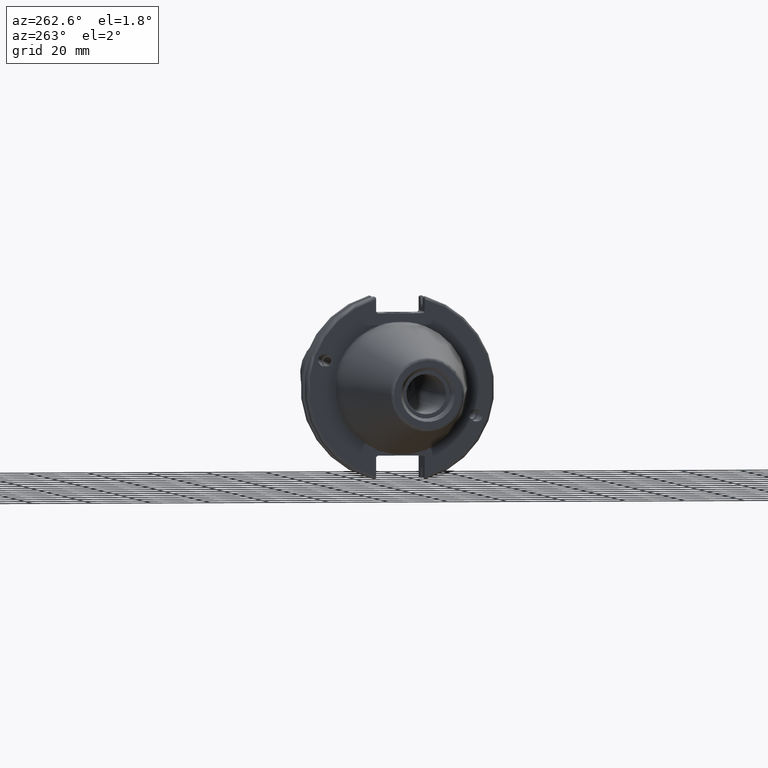
[diagram: clean part render]
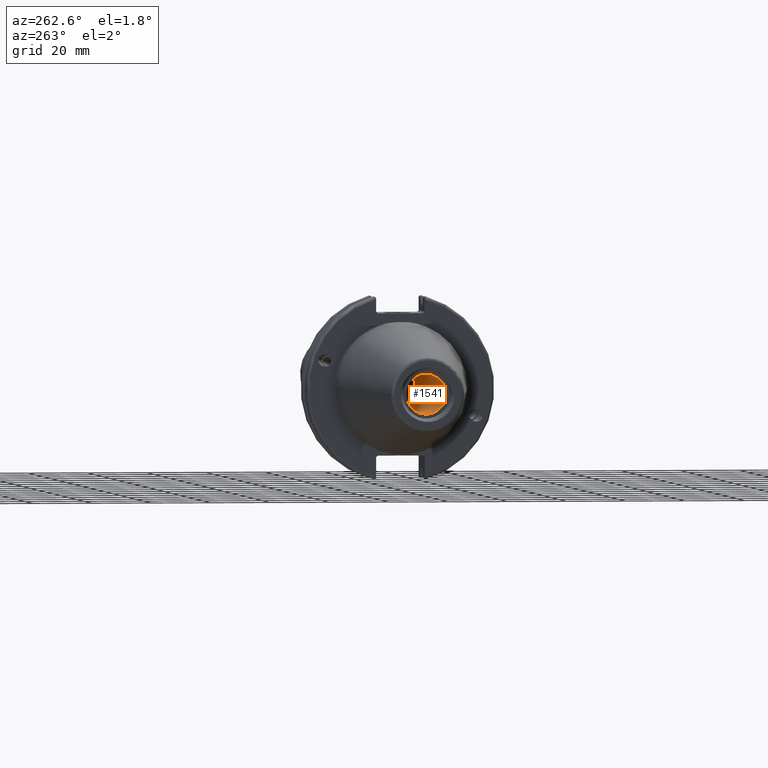
[diagram: same view with one face highlighted and labeled with its STEP entity id]
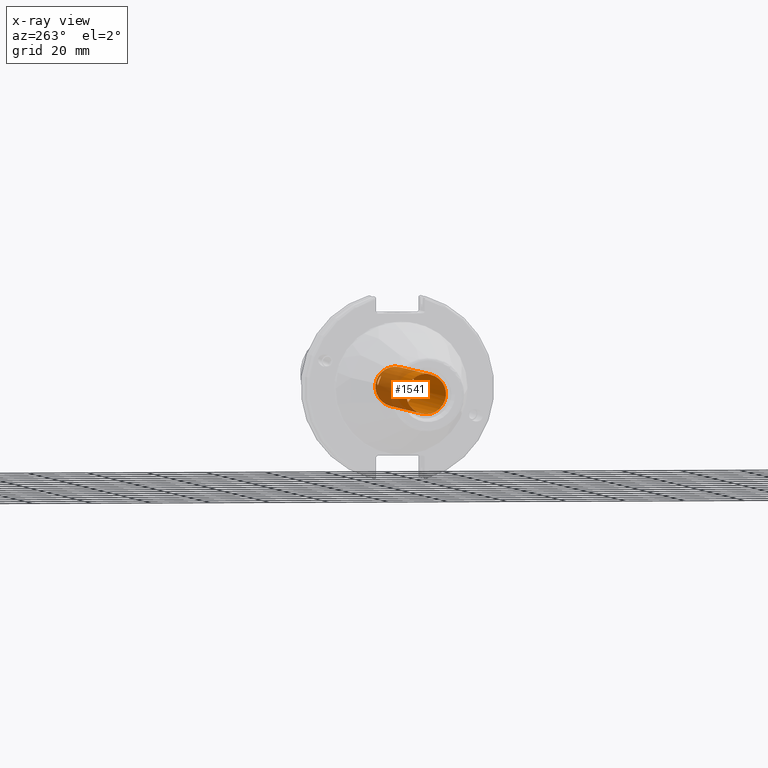
[diagram: x-ray of the same camera — body ghosted, the highlighted face saturated]
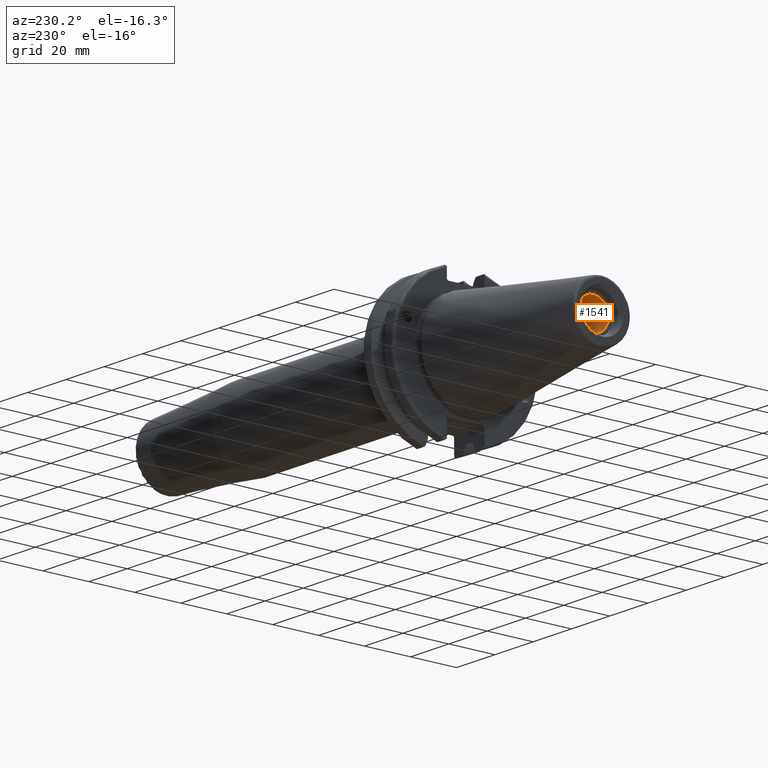
[diagram: same view with one face highlighted and labeled with its STEP entity id]
A machine part, auxiliary view. The second image highlights one B-rep face of the part: STEP entity #1541.
The next image is the same camera in x-ray: the body ghosted, the highlighted face saturated — about 37% of this face is hidden behind the body in this view.
A second angle (auxiliary view) of the same face is appended — the face is thin or edge-on in the first view.
In plain terms, the highlighted cylindrical surface (bore or boss wall) has radius 6.6929 mm, axis along (-1, 0, 0).
Its self-contained STEP definition (entity closure, byte-faithful):
#31=B_SPLINE_CURVE_WITH_KNOTS('',3,(#2393,#2394,#2395,#2396,#2397,#2398,
#2399,#2400,#2401,#2402,#2403,#2404,#2405,#2406,#2407,#2408,#2409,#2410,
#2411,#2412,#2413,#2414,#2415,#2416,#2417,#2418),.UNSPECIFIED.,.F.,.F.,
(4,2,2,2,2,2,2,2,2,2,2,2,4),(0.,0.0613281361392534,0.122656272278507,0.183976883359658,
0.245297494440809,0.30661810552196,0.36793871660311,0.429266852742364,0.490594988881617,
0.55192312502087,0.613251261160123,0.674571872241274,0.735892483322425),
 .UNSPECIFIED.);
#32=B_SPLINE_CURVE_WITH_KNOTS('',3,(#2419,#2420,#2421,#2422,#2423,#2424,
#2425,#2426,#2427,#2428),.UNSPECIFIED.,.F.,.F.,(4,2,2,2,4),(0.735892483322425,
0.797213094403575,0.858533705484726,0.919861841623979,0.981189977763232),
 .UNSPECIFIED.);
#33=B_SPLINE_CURVE_WITH_KNOTS('',3,(#2431,#2432,#2433,#2434,#2435,#2436,
#2437,#2438,#2439,#2440,#2441,#2442,#2443,#2444,#2445,#2446,#2447,#2448,
#2449,#2450,#2451,#2452,#2453,#2454,#2455,#2456),.UNSPECIFIED.,.F.,.F.,
(4,2,2,2,2,2,2,2,2,2,2,2,4),(0.,0.0613281361392537,0.122656272278507,0.183976883359658,
0.245297494440808,0.306618105521959,0.36793871660311,0.429266852742363,
0.490594988881617,0.55192312502087,0.613251261160123,0.674571872241274,
0.735892483322425),.UNSPECIFIED.);
#34=B_SPLINE_CURVE_WITH_KNOTS('',3,(#2457,#2458,#2459,#2460,#2461,#2462,
#2463,#2464,#2465,#2466),.UNSPECIFIED.,.F.,.F.,(4,2,2,2,4),(0.735892483322425,
0.797213094403576,0.858533705484727,0.91986184162398,0.981189977763233),
 .UNSPECIFIED.);
#65=FACE_BOUND('',#284,.T.);
#66=FACE_BOUND('',#285,.T.);
#150=CYLINDRICAL_SURFACE('',#1678,6.6929);
#189=FACE_OUTER_BOUND('',#283,.T.);
#283=EDGE_LOOP('',(#1108,#1109,#1110,#1111));
#284=EDGE_LOOP('',(#1112,#1113));
#285=EDGE_LOOP('',(#1114,#1115));
#392=LINE('',#2390,#488);
#488=VECTOR('',#1927,6.6929);
#586=CIRCLE('',#1677,6.6929);
#587=CIRCLE('',#1679,6.6929);
#673=VERTEX_POINT('',#2384);
#674=VERTEX_POINT('',#2388);
#675=VERTEX_POINT('',#2391);
#676=VERTEX_POINT('',#2392);
#677=VERTEX_POINT('',#2429);
#678=VERTEX_POINT('',#2430);
#840=EDGE_CURVE('',#673,#673,#586,.T.);
#842=EDGE_CURVE('',#674,#674,#587,.T.);
#843=EDGE_CURVE('',#674,#673,#392,.T.);
#844=EDGE_CURVE('',#675,#676,#31,.T.);
#845=EDGE_CURVE('',#676,#675,#32,.T.);
#846=EDGE_CURVE('',#677,#678,#33,.T.);
#847=EDGE_CURVE('',#678,#677,#34,.T.);
#1108=ORIENTED_EDGE('',*,*,#842,.F.);
#1109=ORIENTED_EDGE('',*,*,#843,.T.);
#1110=ORIENTED_EDGE('',*,*,#840,.F.);
#1111=ORIENTED_EDGE('',*,*,#843,.F.);
#1112=ORIENTED_EDGE('',*,*,#844,.F.);
#1113=ORIENTED_EDGE('',*,*,#845,.F.);
#1114=ORIENTED_EDGE('',*,*,#846,.F.);
#1115=ORIENTED_EDGE('',*,*,#847,.F.);
#1541=ADVANCED_FACE('',(#189,#65,#66),#150,.F.);
#1677=AXIS2_PLACEMENT_3D('',#2385,#1920,#1921);
#1678=AXIS2_PLACEMENT_3D('',#2387,#1923,#1924);
#1679=AXIS2_PLACEMENT_3D('',#2389,#1925,#1926);
#1920=DIRECTION('center_axis',(-1.,0.,0.));
#1921=DIRECTION('ref_axis',(0.,0.,1.));
#1923=DIRECTION('center_axis',(-1.,0.,0.));
#1924=DIRECTION('ref_axis',(0.,0.,1.));
#1925=DIRECTION('center_axis',(1.,0.,0.));
#1926=DIRECTION('ref_axis',(0.,0.,1.));
#1927=DIRECTION('',(1.,0.,0.));
#2384=CARTESIAN_POINT('',(16.75,-8.19643856201333E-16,-6.6929));
#2385=CARTESIAN_POINT('Origin',(16.75,0.,0.));
#2387=CARTESIAN_POINT('Origin',(-25.75,0.,0.));
#2388=CARTESIAN_POINT('',(-63.45,8.19643856201332E-16,-6.6929));
#2389=CARTESIAN_POINT('Origin',(-63.45,0.,0.));
#2390=CARTESIAN_POINT('',(-25.75,-8.19643856201332E-16,-6.6929));
#2391=CARTESIAN_POINT('',(11.1341,-6.65643365521149,-0.697711547681303));
#2392=CARTESIAN_POINT('',(9.5131,-6.28926874165801,-2.28910661726437));
#2393=CARTESIAN_POINT('Ctrl Pts',(11.1341,-6.65643365521149,-0.697711547681303));
#2394=CARTESIAN_POINT('Ctrl Pts',(11.3385271204642,-6.65643365521149,-0.697711547681302));
#2395=CARTESIAN_POINT('Ctrl Pts',(11.5559966151745,-6.65241872830876,-0.739904750929787));
#2396=CARTESIAN_POINT('Ctrl Pts',(11.9551199575703,-6.63148496397673,-0.908592848123723));
#2397=CARTESIAN_POINT('Ctrl Pts',(12.1368480110646,-6.6140166083086,-1.03484342994688));
#2398=CARTESIAN_POINT('Ctrl Pts',(12.4237745692937,-6.5627497245329,-1.32152467584939));
#2399=CARTESIAN_POINT('Ctrl Pts',(12.5483995766669,-6.52541782463156,-1.501335759233));
#2400=CARTESIAN_POINT('Ctrl Pts',(12.7140843222182,-6.42387889335004,-1.88914446481651));
#2401=CARTESIAN_POINT('Ctrl Pts',(12.7551,-6.35917835562732,-2.0970315314809));
#2402=CARTESIAN_POINT('Ctrl Pts',(12.7551,-6.2193591276887,-2.48118170304783));
#2403=CARTESIAN_POINT('Ctrl Pts',(12.7140843222182,-6.13529538441206,-2.68202113925062));
#2404=CARTESIAN_POINT('Ctrl Pts',(12.5483995766669,-5.96380008760285,-3.04436781008461));
#2405=CARTESIAN_POINT('Ctrl Pts',(12.4237745692937,-5.87681764559004,-3.20610757402446));
#2406=CARTESIAN_POINT('Ctrl Pts',(12.1368480110646,-5.73181520422681,-3.45867186707276));
#2407=CARTESIAN_POINT('Ctrl Pts',(11.9551199575703,-5.66404443130516,-3.566613866304));
#2408=CARTESIAN_POINT('Ctrl Pts',(11.5559966151745,-5.57165000636742,-3.70929241011646));
#2409=CARTESIAN_POINT('Ctrl Pts',(11.3385271204642,-5.54760435054967,-3.74419502426922));
#2410=CARTESIAN_POINT('Ctrl Pts',(10.9296728795358,-5.54760435054967,-3.74419502426922));
#2411=CARTESIAN_POINT('Ctrl Pts',(10.7122033848255,-5.57165000636742,-3.70929241011646));
#2412=CARTESIAN_POINT('Ctrl Pts',(10.3130800424297,-5.66404443130516,-3.566613866304));
#2413=CARTESIAN_POINT('Ctrl Pts',(10.1313519889354,-5.73181520422682,-3.45867186707276));
#2414=CARTESIAN_POINT('Ctrl Pts',(9.84442543070629,-5.87681764559004,-3.20610757402446));
#2415=CARTESIAN_POINT('Ctrl Pts',(9.71980042333311,-5.96380008760285,-3.04436781008461));
#2416=CARTESIAN_POINT('Ctrl Pts',(9.55411567778177,-6.13529538441205,-2.68202113925061));
#2417=CARTESIAN_POINT('Ctrl Pts',(9.5131,-6.2193591276887,-2.48118170304783));
#2418=CARTESIAN_POINT('Ctrl Pts',(9.5131,-6.28926874165801,-2.28910661726437));
#2419=CARTESIAN_POINT('Ctrl Pts',(9.5131,-6.28926874165801,-2.28910661726437));
#2420=CARTESIAN_POINT('Ctrl Pts',(9.5131,-6.35917835562732,-2.0970315314809));
#2421=CARTESIAN_POINT('Ctrl Pts',(9.55411567778177,-6.42387889335004,-1.88914446481651));
#2422=CARTESIAN_POINT('Ctrl Pts',(9.71980042333311,-6.52541782463156,-1.501335759233));
#2423=CARTESIAN_POINT('Ctrl Pts',(9.84442543070629,-6.5627497245329,-1.32152467584939));
#2424=CARTESIAN_POINT('Ctrl Pts',(10.1313519889354,-6.6140166083086,-1.03484342994689));
#2425=CARTESIAN_POINT('Ctrl Pts',(10.3130800424297,-6.63148496397672,-0.908592848123727));
#2426=CARTESIAN_POINT('Ctrl Pts',(10.7122033848255,-6.65241872830876,-0.73990475092979));
#2427=CARTESIAN_POINT('Ctrl Pts',(10.9296728795358,-6.65643365521149,-0.697711547681304));
#2428=CARTESIAN_POINT('Ctrl Pts',(11.1341,-6.65643365521149,-0.697711547681303));
#2429=CARTESIAN_POINT('',(11.1341,6.65643365521149,0.697711547681304));
#2430=CARTESIAN_POINT('',(9.5131,6.28926874165801,2.28910661726437));
#2431=CARTESIAN_POINT('Ctrl Pts',(11.1341,6.65643365521149,0.697711547681304));
#2432=CARTESIAN_POINT('Ctrl Pts',(11.3385271204642,6.65643365521149,0.697711547681304));
#2433=CARTESIAN_POINT('Ctrl Pts',(11.5559966151745,6.65241872830876,0.739904750929789));
#2434=CARTESIAN_POINT('Ctrl Pts',(11.9551199575703,6.63148496397672,0.908592848123728));
#2435=CARTESIAN_POINT('Ctrl Pts',(12.1368480110646,6.6140166083086,1.03484342994689));
#2436=CARTESIAN_POINT('Ctrl Pts',(12.4237745692937,6.5627497245329,1.32152467584939));
#2437=CARTESIAN_POINT('Ctrl Pts',(12.5483995766669,6.52541782463156,1.501335759233));
#2438=CARTESIAN_POINT('Ctrl Pts',(12.7140843222182,6.42387889335004,1.88914446481652));
#2439=CARTESIAN_POINT('Ctrl Pts',(12.7551,6.35917835562732,2.0970315314809));
#2440=CARTESIAN_POINT('Ctrl Pts',(12.7551,6.2193591276887,2.48118170304783));
#2441=CARTESIAN_POINT('Ctrl Pts',(12.7140843222182,6.13529538441206,2.68202113925061));
#2442=CARTESIAN_POINT('Ctrl Pts',(12.5483995766669,5.96380008760285,3.04436781008461));
#2443=CARTESIAN_POINT('Ctrl Pts',(12.4237745692937,5.87681764559004,3.20610757402446));
#2444=CARTESIAN_POINT('Ctrl Pts',(12.1368480110646,5.73181520422681,3.45867186707276));
#2445=CARTESIAN_POINT('Ctrl Pts',(11.9551199575703,5.66404443130516,3.566613866304));
#2446=CARTESIAN_POINT('Ctrl Pts',(11.5559966151745,5.57165000636742,3.70929241011646));
#2447=CARTESIAN_POINT('Ctrl Pts',(11.3385271204642,5.54760435054967,3.74419502426922));
#2448=CARTESIAN_POINT('Ctrl Pts',(10.9296728795358,5.54760435054967,3.74419502426922));
#2449=CARTESIAN_POINT('Ctrl Pts',(10.7122033848255,5.57165000636742,3.70929241011646));
#2450=CARTESIAN_POINT('Ctrl Pts',(10.3130800424297,5.66404443130516,3.566613866304));
#2451=CARTESIAN_POINT('Ctrl Pts',(10.1313519889354,5.73181520422681,3.45867186707276));
#2452=CARTESIAN_POINT('Ctrl Pts',(9.84442543070629,5.87681764559004,3.20610757402446));
#2453=CARTESIAN_POINT('Ctrl Pts',(9.71980042333312,5.96380008760285,3.04436781008461));
#2454=CARTESIAN_POINT('Ctrl Pts',(9.55411567778177,6.13529538441206,2.68202113925062));
#2455=CARTESIAN_POINT('Ctrl Pts',(9.5131,6.2193591276887,2.48118170304783));
#2456=CARTESIAN_POINT('Ctrl Pts',(9.5131,6.28926874165801,2.28910661726437));
#2457=CARTESIAN_POINT('Ctrl Pts',(9.5131,6.28926874165801,2.28910661726437));
#2458=CARTESIAN_POINT('Ctrl Pts',(9.5131,6.35917835562732,2.0970315314809));
#2459=CARTESIAN_POINT('Ctrl Pts',(9.55411567778177,6.42387889335004,1.88914446481651));
#2460=CARTESIAN_POINT('Ctrl Pts',(9.71980042333312,6.52541782463156,1.501335759233));
#2461=CARTESIAN_POINT('Ctrl Pts',(9.84442543070629,6.5627497245329,1.32152467584939));
#2462=CARTESIAN_POINT('Ctrl Pts',(10.1313519889354,6.6140166083086,1.03484342994688));
#2463=CARTESIAN_POINT('Ctrl Pts',(10.3130800424297,6.63148496397672,0.908592848123728));
#2464=CARTESIAN_POINT('Ctrl Pts',(10.7122033848255,6.65241872830876,0.739904750929791));
#2465=CARTESIAN_POINT('Ctrl Pts',(10.9296728795358,6.65643365521149,0.697711547681305));
#2466=CARTESIAN_POINT('Ctrl Pts',(11.1341,6.65643365521149,0.697711547681305));